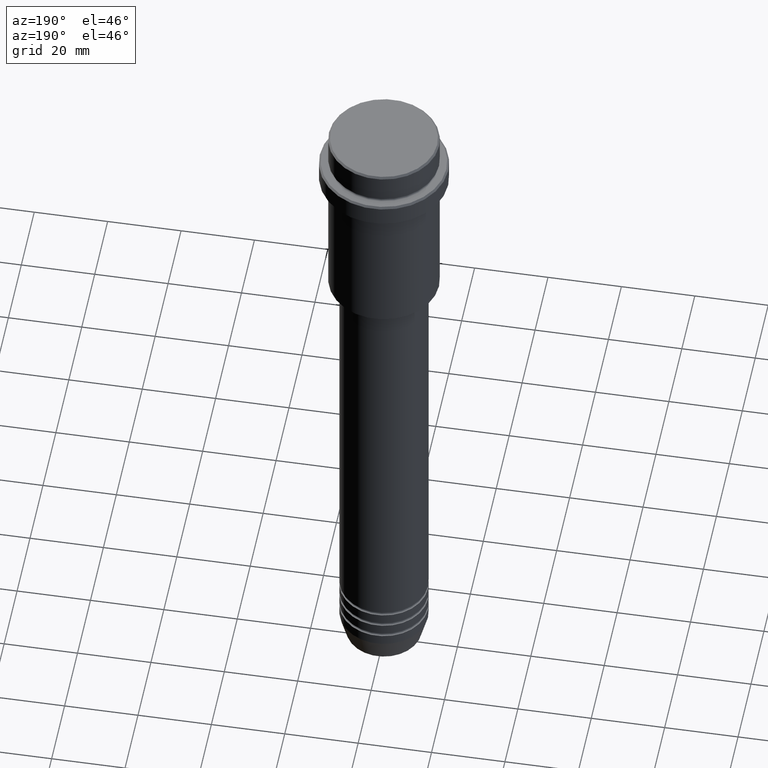
[diagram: clean part render]
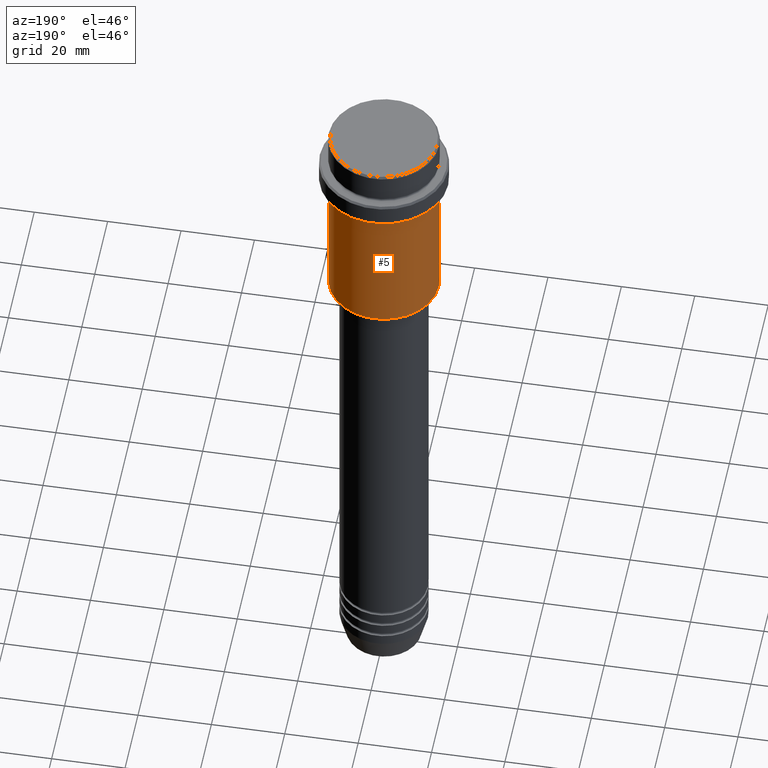
[diagram: same view with one face highlighted and labeled with its STEP entity id]
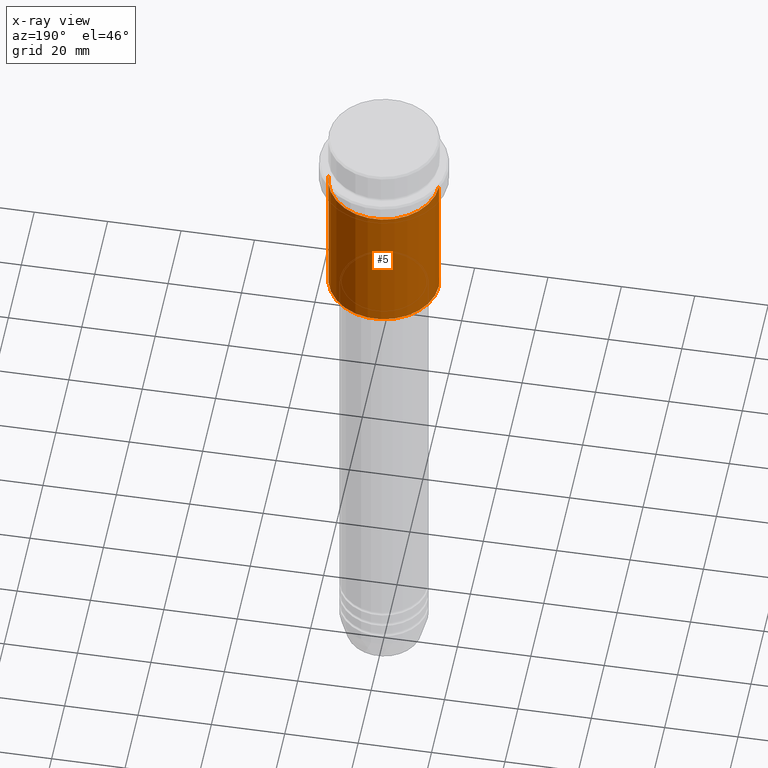
[diagram: x-ray of the same camera — body ghosted, the highlighted face saturated]
A machine part, auxiliary view. The second image highlights one B-rep face of the part: STEP entity #5.
The next image is the same camera in x-ray: the body ghosted, the highlighted face saturated — about 0% of this face is hidden behind the body in this view.
In plain terms, the highlighted cylindrical surface (partial cylindrical patch) has radius 15 mm, axis along (-0, -0, 1).
Its self-contained STEP definition (entity closure, byte-faithful):
#5 = ADVANCED_FACE ( 'NONE', ( #449 ), #441, .T. ) ;
#18 = CARTESIAN_POINT ( 'NONE',  ( 15.00000000000000178, 0.000000000000000000, -16.00000000000000000 ) ) ;
#19 = CIRCLE ( 'NONE', #461, 15.00000000000000000 ) ;
#69 = DIRECTION ( 'NONE',  ( -1.000000000000000000, 0.000000000000000000, 0.000000000000000000 ) ) ;
#133 = CARTESIAN_POINT ( 'NONE',  ( -15.00000000000000355, 1.836970198721029983E-15, -16.00000000000000000 ) ) ;
#245 = EDGE_CURVE ( 'NONE', #610, #929, #1033, .T. ) ;
#262 = CARTESIAN_POINT ( 'NONE',  ( 15.00000000000000000, 0.000000000000000000, -54.49999999999998579 ) ) ;
#309 = ORIENTED_EDGE ( 'NONE', *, *, #245, .T. ) ;
#352 = VERTEX_POINT ( 'NONE', #18 ) ;
#422 = DIRECTION ( 'NONE',  ( -0.000000000000000000, -0.000000000000000000, 1.000000000000000000 ) ) ;
#426 = DIRECTION ( 'NONE',  ( -0.000000000000000000, -0.000000000000000000, 1.000000000000000000 ) ) ;
#441 = CYLINDRICAL_SURFACE ( 'NONE', #1073, 15.00000000000000000 ) ;
#449 = FACE_OUTER_BOUND ( 'NONE', #918, .T. ) ;
#461 = AXIS2_PLACEMENT_3D ( 'NONE', #921, #1046, #69 ) ;
#491 = ORIENTED_EDGE ( 'NONE', *, *, #1240, .F. ) ;
#521 = CARTESIAN_POINT ( 'NONE',  ( -15.00000000000000000, 1.836970198721029589E-15, 0.000000000000000000 ) ) ;
#610 = VERTEX_POINT ( 'NONE', #1354 ) ;
#694 = ORIENTED_EDGE ( 'NONE', *, *, #1199, .F. ) ;
#732 = VECTOR ( 'NONE', #422, 1000.000000000000000 ) ;
#761 = CARTESIAN_POINT ( 'NONE',  ( 15.00000000000000000, 0.000000000000000000, 0.000000000000000000 ) ) ;
#797 = CARTESIAN_POINT ( 'NONE',  ( 0.000000000000000000, 0.000000000000000000, -16.00000000000000000 ) ) ;
#829 = VERTEX_POINT ( 'NONE', #262 ) ;
#854 = LINE ( 'NONE', #761, #732 ) ;
#868 = CARTESIAN_POINT ( 'NONE',  ( 0.000000000000000000, 0.000000000000000000, 0.000000000000000000 ) ) ;
#918 = EDGE_LOOP ( 'NONE', ( #952, #309, #491, #694 ) ) ;
#921 = CARTESIAN_POINT ( 'NONE',  ( 0.000000000000000000, 0.000000000000000000, -54.49999999999998579 ) ) ;
#929 = VERTEX_POINT ( 'NONE', #133 ) ;
#948 = DIRECTION ( 'NONE',  ( -0.000000000000000000, -0.000000000000000000, 1.000000000000000000 ) ) ;
#952 = ORIENTED_EDGE ( 'NONE', *, *, #1048, .T. ) ;
#1008 = DIRECTION ( 'NONE',  ( -0.000000000000000000, -0.000000000000000000, 1.000000000000000000 ) ) ;
#1033 = LINE ( 'NONE', #521, #1387 ) ;
#1046 = DIRECTION ( 'NONE',  ( -0.000000000000000000, -0.000000000000000000, 1.000000000000000000 ) ) ;
#1048 = EDGE_CURVE ( 'NONE', #829, #610, #19, .T. ) ;
#1055 = AXIS2_PLACEMENT_3D ( 'NONE', #797, #1008, #1121 ) ;
#1073 = AXIS2_PLACEMENT_3D ( 'NONE', #868, #426, #1297 ) ;
#1101 = CIRCLE ( 'NONE', #1055, 15.00000000000000178 ) ;
#1121 = DIRECTION ( 'NONE',  ( 1.000000000000000000, 0.000000000000000000, 0.000000000000000000 ) ) ;
#1199 = EDGE_CURVE ( 'NONE', #829, #352, #854, .T. ) ;
#1240 = EDGE_CURVE ( 'NONE', #352, #929, #1101, .T. ) ;
#1297 = DIRECTION ( 'NONE',  ( 1.000000000000000000, 0.000000000000000000, 0.000000000000000000 ) ) ;
#1354 = CARTESIAN_POINT ( 'NONE',  ( -15.00000000000000000, 1.836970198721029589E-15, -54.49999999999998579 ) ) ;
#1387 = VECTOR ( 'NONE', #948, 1000.000000000000000 ) ;